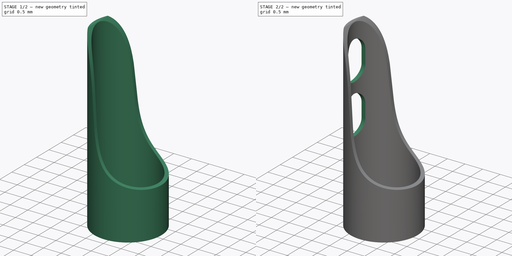
[diagram: build sequence overview — one tinted view per stage of 2, left to right]
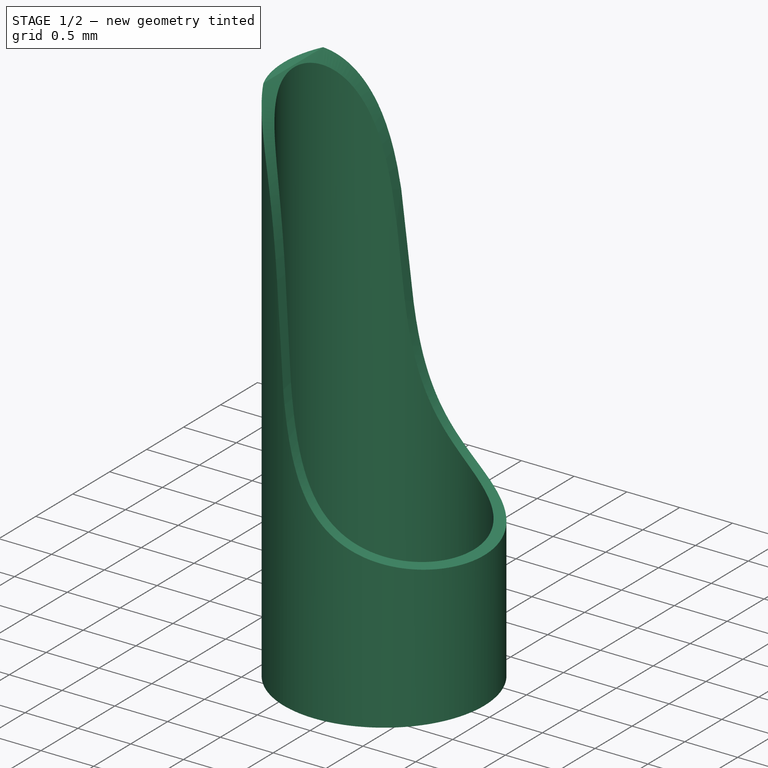
[diagram: stage 1 of 2 — iso view after this stage's code; geometry added in this stage tinted green]
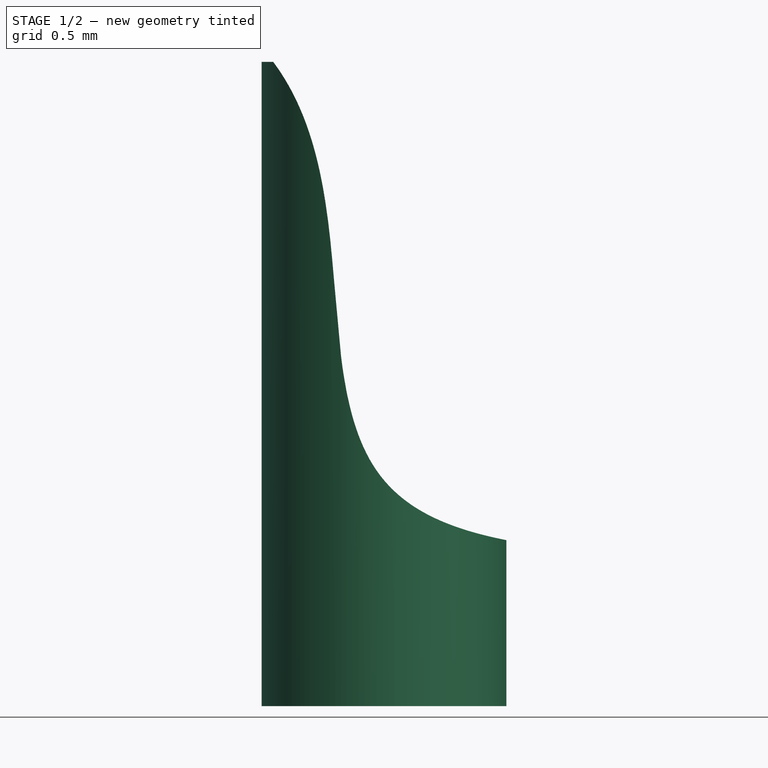
[diagram: stage 1 of 2 — front view after this stage's code; geometry added in this stage tinted green]
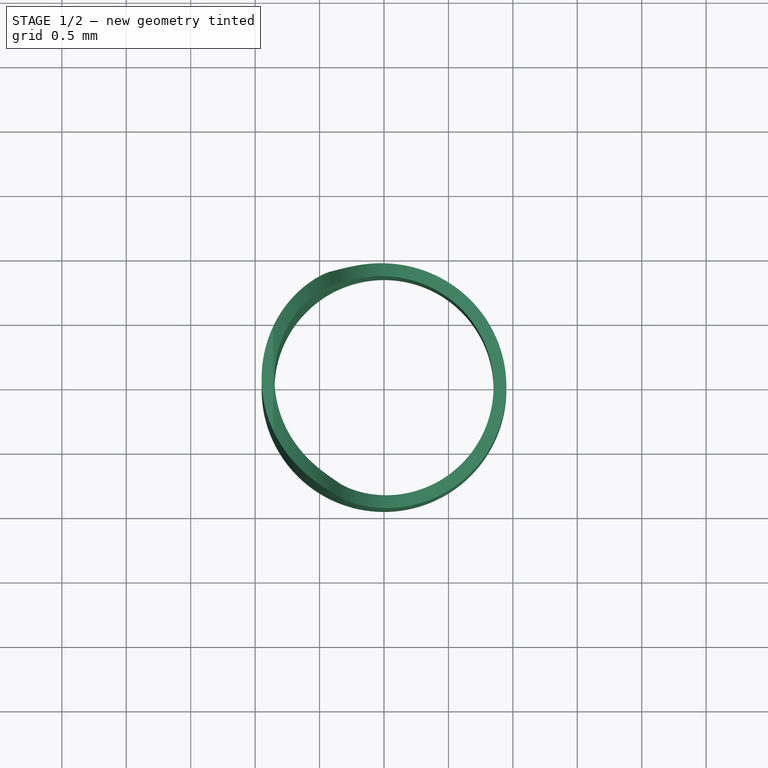
[diagram: stage 1 of 2 — top view after this stage's code; geometry added in this stage tinted green]
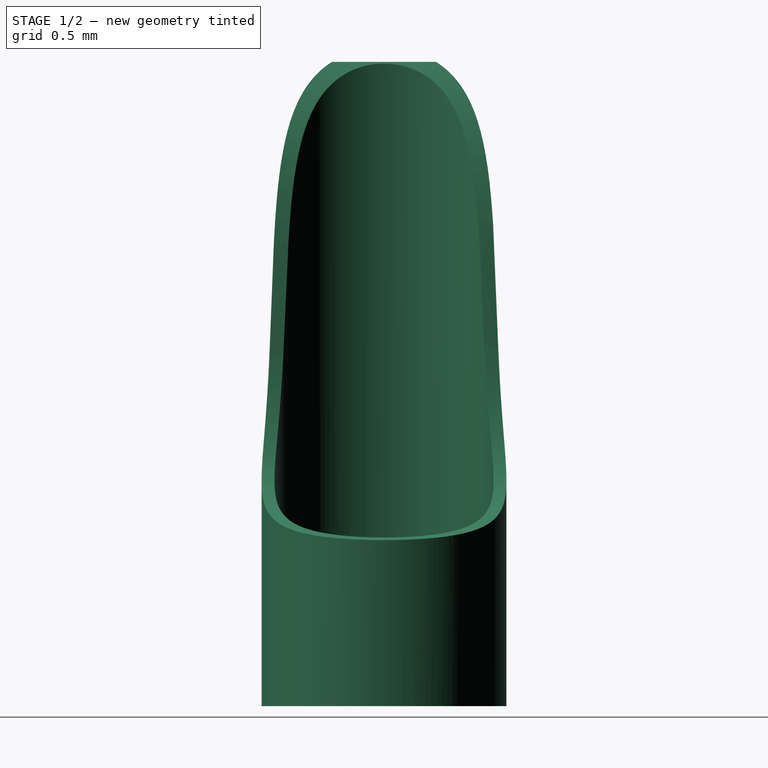
[diagram: stage 1 of 2 — right view after this stage's code; geometry added in this stage tinted green]
FCSTD DOCUMENT  (FreeCAD 0.18.4R)
Label: DIN-SolderablePin
License: All rights reserved
LicenseURL: http://en.wikipedia.org/wiki/All_rights_reserved
objects: Sketcher::SketchObject×3, PartDesign::Pocket×2, PartDesign::Pad×1, PartDesign::Body×1, Part::Feature×1
note: 11 computed .brp shape members not serialized (recipe doc carries the construction recipe); baked Part::Feature solids carry a one-line shape summary decoded from their .brp

FEATURE [Sketcher::SketchObject] Sketch
  MapMode = 5
  Support = -> [XY_Plane]
  sketch-geometry (2):
    g0: Circle CenterX=0 CenterY=0 CenterZ=0 NormalX=0 NormalY=0 NormalZ=1 AngleXU=0 Radius=0.85
    g1: Circle CenterX=0 CenterY=0 CenterZ=0 NormalX=0 NormalY=0 NormalZ=1 AngleXU=0 Radius=0.95
  constraints (4):
    c: Coincident(g0,g-1)
    c: Coincident(g1,g0)
    c: Radius(g1) = 0.95
    c: Radius(g0) = 0.85
FEATURE [PartDesign::Pad] Pad
  Length = 5
  Length2 = 100
  Profile = -> Sketch
  Type = 0
FEATURE [Sketcher::SketchObject] Sketch001
  MapMode = 5
  Placement = pos=(0,0,0) rot=(1,0,0;1.5708rad)
  Support = -> [XZ_Plane]
  sketch-geometry (14):
    g0: LineSegment StartX=-0.86 StartY=5 StartZ=0 EndX=2.54 EndY=5 EndZ=0
    g1: LineSegment StartX=2.54 StartY=5 StartZ=0 EndX=2.54 EndY=1.2 EndZ=0
    g2: LineSegment StartX=2.54 StartY=1.2 StartZ=0 EndX=1.66832 EndY=1.2 EndZ=0
    g3-g8: Circle [constr] x6 (B-spline internal-alignment scaffolding for g9; pole/knot coordinates omitted)
    g9: BSplineCurve PolesCount=6 KnotsCount=4 Degree=3 IsPeriodic=0
    g10-g13: GeomPoint [constr] x4 (B-spline internal-alignment scaffolding for g9; pole/knot coordinates omitted)
  constraints (15):
    c: Coincident(g0,g1)
    c: Coincident(g1,g2)
    c: Horizontal(g0)
    c: Horizontal(g2)
    c: Vertical(g1)
    c: DistanceX(g-1,g1) = 2.54
    c: DistanceY(g-1,g1) = 1.2
    c: DistanceY(g1,g1) = 3.8
    c: DistanceX(g0,g0) = 3.4
    c: Coincident(g9,g0)
    c: Radius(g3) = 0.2
    c: Equal(g3, g4-g8) x5
    c: Coincident(g9,g2)
    c: InternalAlignment(g3-g8 -> g9) x6
    c: InternalAlignment(g10-g13 -> g9) x4
FEATURE [PartDesign::Pocket] Pocket
  BaseFeature = -> Pad
  Length = 5
  Length2 = 100
  Midplane = true
  Profile = -> Sketch001
  Type = 1
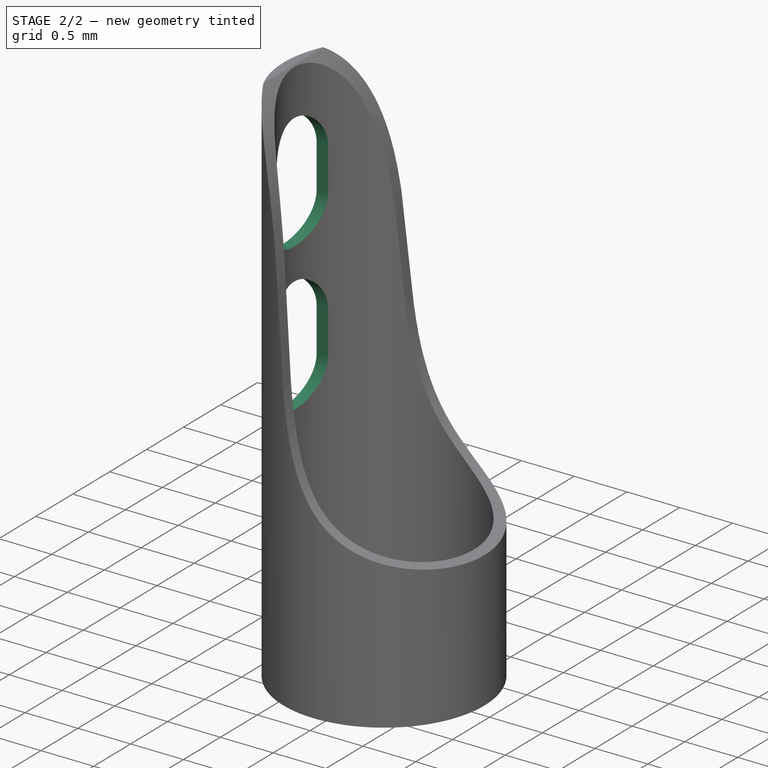
[diagram: stage 2 of 2 — iso view after this stage's code; geometry added in this stage tinted green]
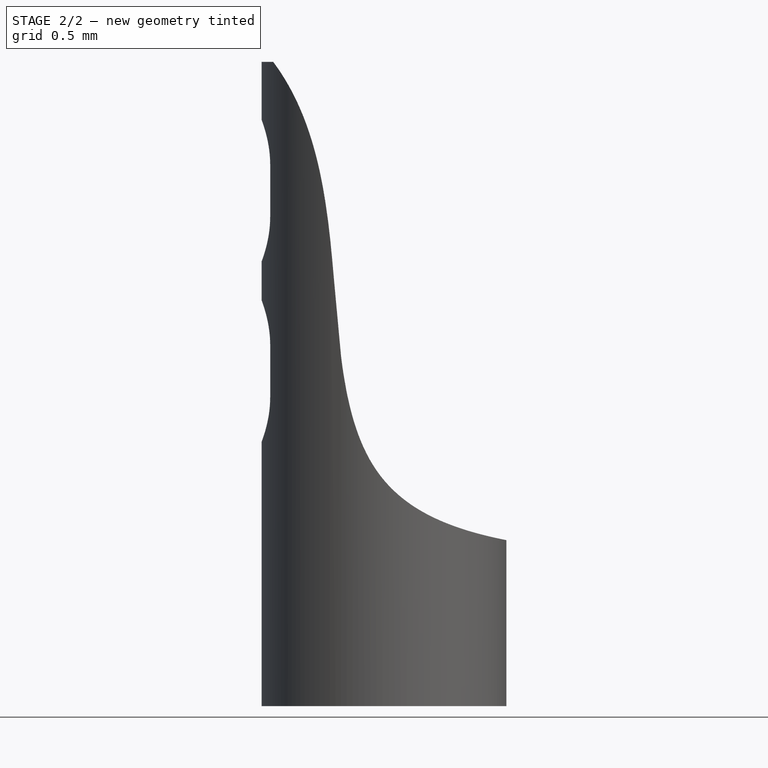
[diagram: stage 2 of 2 — front view after this stage's code; geometry added in this stage tinted green]
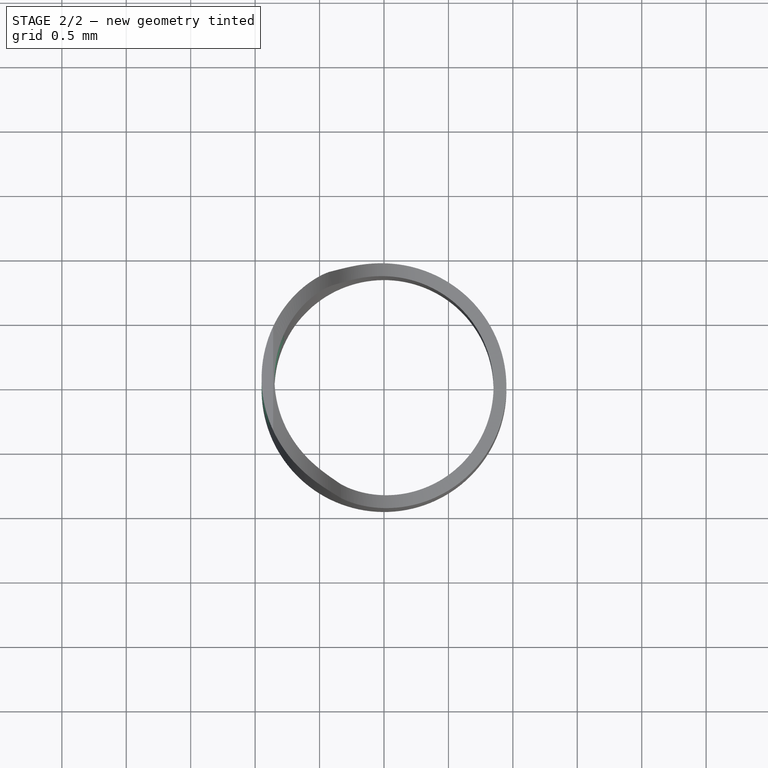
[diagram: stage 2 of 2 — top view after this stage's code; geometry added in this stage tinted green]
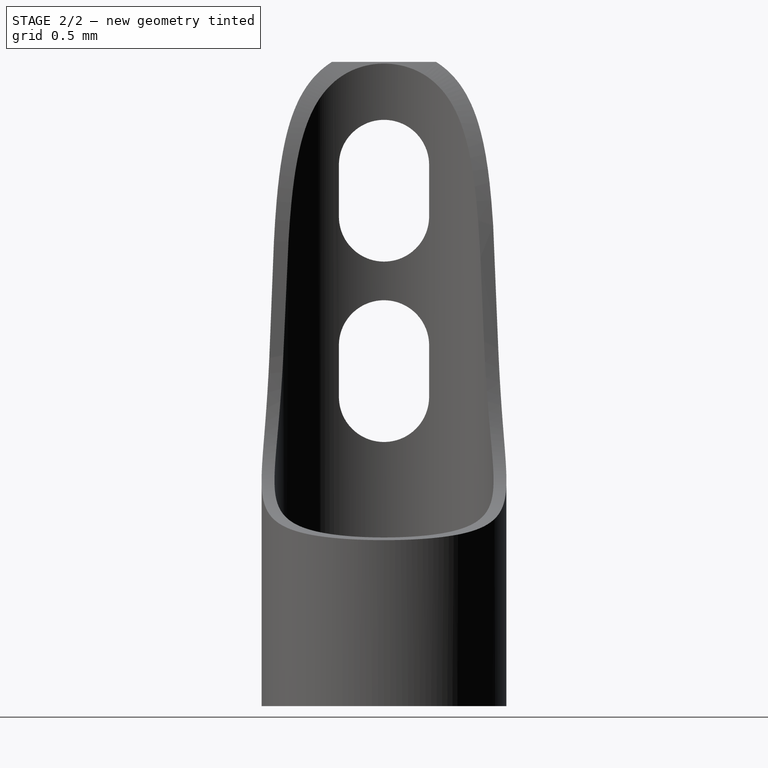
[diagram: stage 2 of 2 — right view after this stage's code; geometry added in this stage tinted green]
FEATURE [Sketcher::SketchObject] Sketch002
  MapMode = 5
  Placement = pos=(0,0,0) rot=(0.57735,0.57735,0.57735;2.0944rad)
  Support = -> [YZ_Plane]
  sketch-geometry (8):
    g0: ArcOfCircle CenterX=0 CenterY=4.2 CenterZ=0 NormalX=0 NormalY=0 NormalZ=1 AngleXU=0 Radius=0.35 StartAngle=-1.48068e-11 EndAngle=3.14159
    g1: ArcOfCircle CenterX=3.1e-15 CenterY=3.8 CenterZ=0 NormalX=0 NormalY=0 NormalZ=1 AngleXU=0 Radius=0.35 StartAngle=3.14159 EndAngle=6.28319
    g2: LineSegment StartX=-0.35 StartY=4.2 StartZ=0 EndX=-0.35 EndY=3.8 EndZ=0
    g3: LineSegment StartX=0.35 StartY=4.2 StartZ=0 EndX=0.35 EndY=3.8 EndZ=0
    g4: ArcOfCircle CenterX=0 CenterY=2.8 CenterZ=0 NormalX=0 NormalY=0 NormalZ=1 AngleXU=0 Radius=0.35 StartAngle=1.48069e-11 EndAngle=3.14159
    g5: ArcOfCircle CenterX=-3.1e-15 CenterY=2.4 CenterZ=0 NormalX=0 NormalY=0 NormalZ=1 AngleXU=0 Radius=0.35 StartAngle=3.14159 EndAngle=6.28319
    g6: LineSegment StartX=-0.35 StartY=2.8 StartZ=0 EndX=-0.35 EndY=2.4 EndZ=0
    g7: LineSegment StartX=0.35 StartY=2.8 StartZ=0 EndX=0.35 EndY=2.4 EndZ=0
  constraints (20):
    c: Tangent(g0,g3) = 1.5708
    c: Tangent(g0,g2) = -1.5708
    c: Tangent(g2,g1) = -1.5708
    c: Tangent(g3,g1) = 1.5708
    c: Vertical(g2)
    c: Equal(g0,g1)
    c: PointOnObject(g0,g-2)
    c: DistanceY(g1,g0) = 0.4
    c: DistanceX(g1,g1) = 0.7
    c: DistanceY(g-1,g0) = 4.2
    c: Tangent(g4,g7) = 1.5708
    c: Tangent(g4,g6) = -1.5708
    c: Tangent(g6,g5) = -1.5708
    c: Tangent(g7,g5) = 1.5708
    c: Vertical(g6)
    c: Equal(g4,g5)
    c: DistanceY(g5,g4) = 0.4
    c: Equal(g1,g5) = 0.7
    c: PointOnObject(g4,g-2)
    c: DistanceY(g4,g1) = 1
FEATURE [PartDesign::Pocket] Pocket001  label="SolderablePin"
  BaseFeature = -> Pocket
  Length = 1
  Length2 = 100
  Profile = -> Sketch002
  Type = 0
FEATURE [PartDesign::Body] Body
  Group = -> [Sketch,Pad,Sketch001,Pocket,Sketch002,Pocket001]
  Origin = -> Origin
  Tip = -> Pocket001
FEATURE [Part::Feature] Pocket001001  label="SolderablePin001"
  Placement = pos=(0,0,0) rot=(0.707107,-0.707107,0;3.14159rad)
  shape: bbox 1.901 x 1.9 x 5 mm, 13 faces (baked)
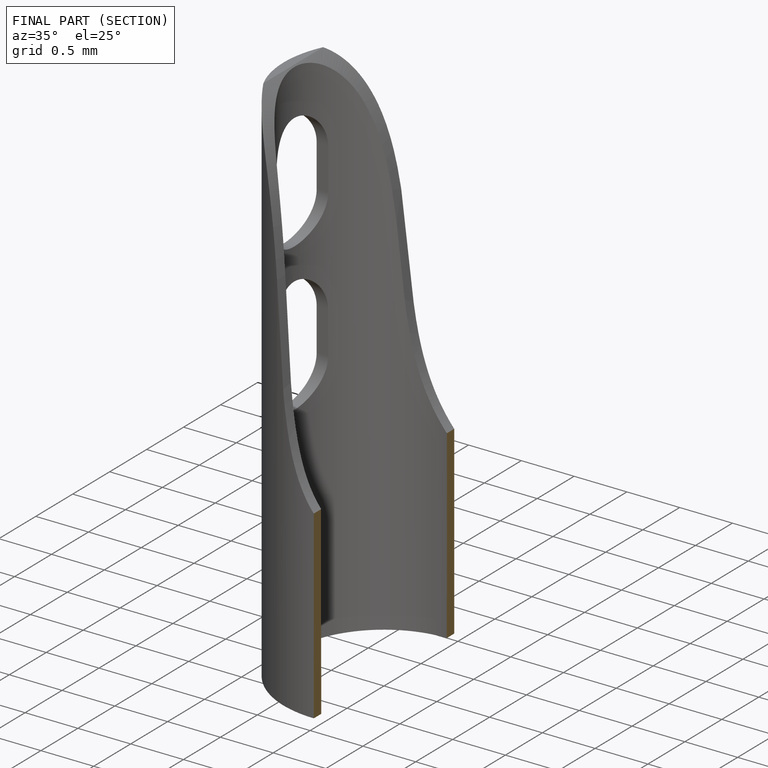
[diagram: finished part — half-section view (interior)]
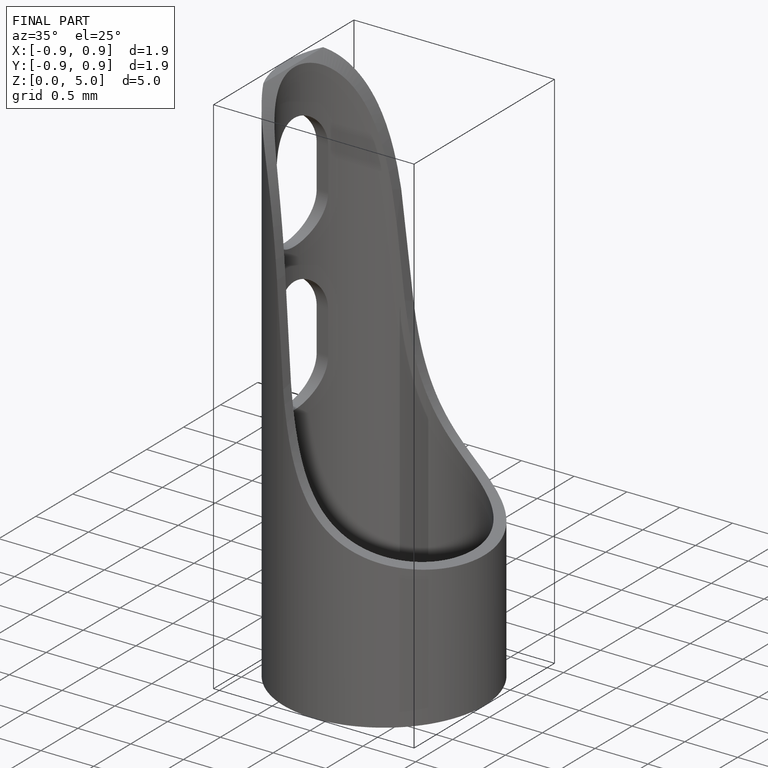
[diagram: finished part — iso view with bounding-box wireframe]
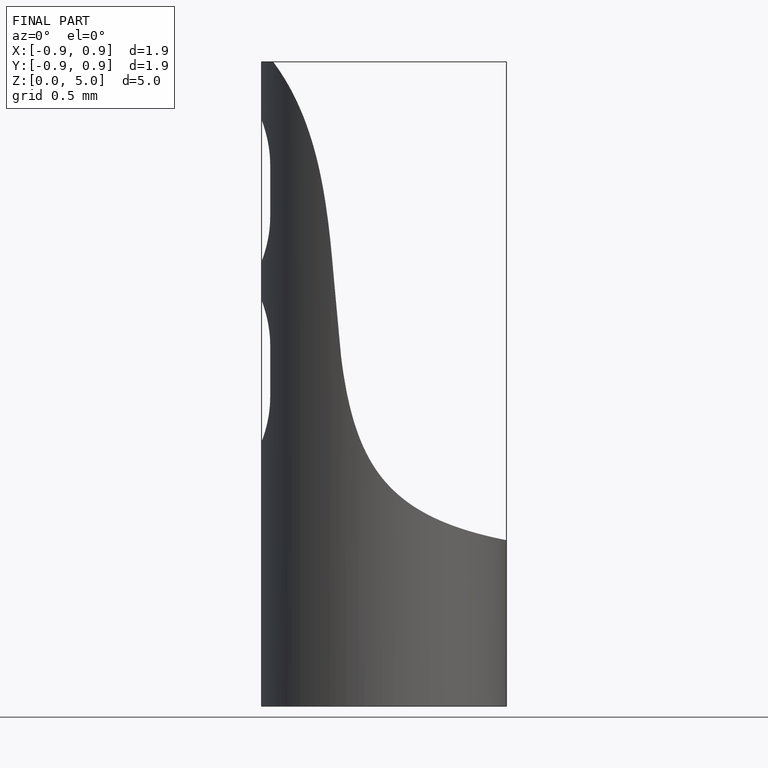
[diagram: finished part — front view with bounding-box wireframe]
